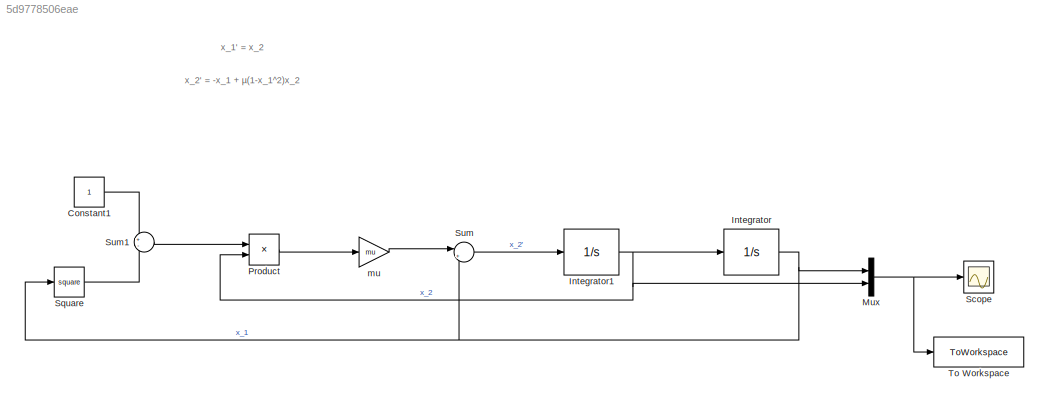
MODEL slx_5d9778506eae
KIND model
CONFIG AbsTol = auto
CONFIG EnableMultiTasking = off
CONFIG FixedStep = auto
CONFIG MaxStep = auto
CONFIG MinStep = auto
CONFIG RelTol = 1e-3
CONFIG SampleTimeConstraint = Unconstrained
CONFIG SolverName = VariableStepAuto
CONFIG StartTime = 0.0
CONFIG StopTime = tsim
BLOCK [Constant] Constant1
BLOCK [Integrator] Integrator
  InitialCondition = x1_0
BLOCK [Integrator] Integrator1
  InitialCondition = x2_0
BLOCK [Mux] Mux
  DisplayOption = bar
  Inputs = 2
BLOCK [Product] Product
BLOCK [Scope] Scope
  Floating = off
  NumInputPorts = 1
  ScopeSpecificationString = Simulink.scopes.TimeScopeBlockCfg('CurrentConfiguration', extmgr.ConfigurationSet(extmgr.Configuration('Core','General UI',true),extmgr.Configuration('Core','Source UI',true),extmgr.Configuration('Sources','WiredSimulink',true),extmgr.Configuration('Visuals','Time Domain',true,'SerializedDisplays',{struct('MinYLimReal','-3.29658','MaxYLimReal','3.15398','YLabelReal','','MinYLimMag','0.00000','MaxY...<+1358ch>
BLOCK [Math] Square
  Operator = square
BLOCK [Sum] Sum
  Inputs = |+-
BLOCK [Sum] Sum1
  Inputs = +-
BLOCK [ToWorkspace] To Workspace
  FixptAsFi = on
  MaxDataPoints = inf
  SampleTime = -1
  SaveFormat = Timeseries
  VariableName = values
BLOCK [Gain] mu
  Gain = mu
ANNOTATION (root): x_1' = x_2
ANNOTATION (root): x_2' = -x_1 + µ(1-x_1^2)x_2
LINE Constant1:1 -> Sum1:1
NET Integrator1:1 -> Integrator:1, Mux:2, Product:2
NET Integrator:1 -> Mux:1, Square:1, Sum:2
NET Mux:1 -> Scope:1, To Workspace:1
LINE Product:1 -> mu:1
LINE Square:1 -> Sum1:2
LINE Sum1:1 -> Product:1
LINE Sum:1 -> Integrator1:1
LINE mu:1 -> Sum:1
note: NET lines group one-source signal fan-out (src -> all destinations, sorted); 1:1 wires keep LINE
